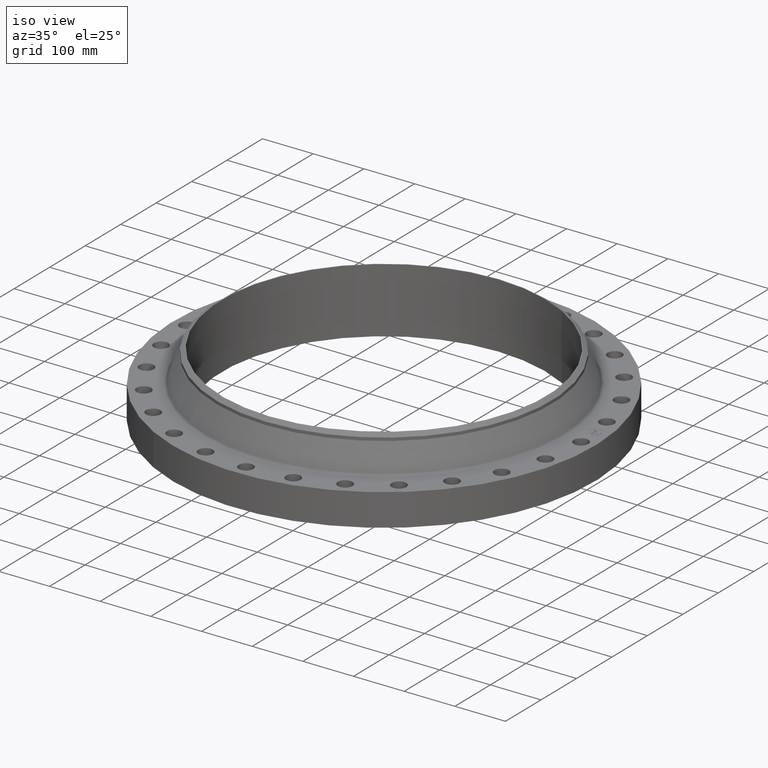
[diagram: clean part render]
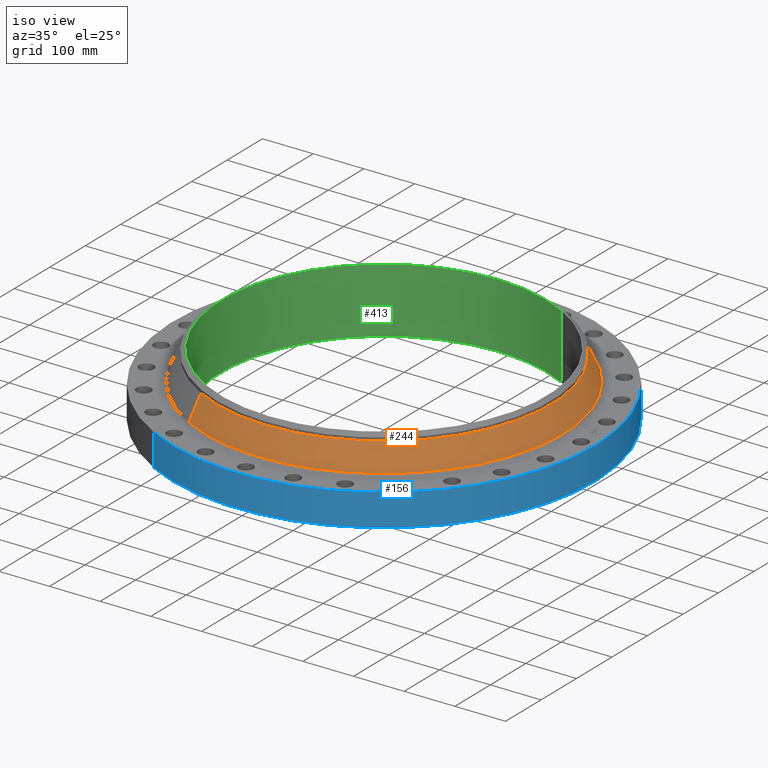
[diagram: same view with three faces highlighted in distinct colors, each labeled with its STEP entity id]
A machine part, iso view with three faces highlighted in distinct colors.
Their STEP definitions:

[orange] entity #244 — the highlighted conical surface has half-angle 24.912 deg.
#180=AXIS2_PLACEMENT_3D('Circle Axis2P3D',#178,#179,$) ;
#217=AXIS2_PLACEMENT_3D('Cone Axis2P3D',#214,#215,#216) ;
#228=AXIS2_PLACEMENT_3D('Circle Axis2P3D',#226,#227,$) ;
#175=CARTESIAN_POINT('Vertex',(6.65097424101,12.1745266856,2.64469540812)) ;
#178=CARTESIAN_POINT('Axis2P3D Location',(0.,0.,2.64469540812)) ;
#182=CARTESIAN_POINT('Vertex',(-6.65097424101,-12.1745266856,2.64469540812)) ;
#214=CARTESIAN_POINT('Axis2P3D Location',(0.,0.,4.52398984383)) ;
#219=CARTESIAN_POINT('Line Origine',(6.44175312144,11.7915499951,3.58434262598)) ;
#223=CARTESIAN_POINT('Vertex',(6.23253200188,11.4085733046,4.52398984383)) ;
#226=CARTESIAN_POINT('Axis2P3D Location',(0.,0.,4.52398984383)) ;
#230=CARTESIAN_POINT('Vertex',(-6.23253200188,-11.4085733046,4.52398984383)) ;
#233=CARTESIAN_POINT('Line Origine',(-6.44175312144,-11.7915499951,3.58434262598)) ;
#179=DIRECTION('Axis2P3D Direction',(0.,0.,-0.0393700787402)) ;
#215=DIRECTION('Axis2P3D Direction',(0.,0.,-0.0393700787402)) ;
#216=DIRECTION('Axis2P3D XDirection',(-0.0188750212049,-0.0345504945626,0.)) ;
#220=DIRECTION('Vector Direction',(0.00795050561934,0.0145533029176,-0.0357070572099)) ;
#227=DIRECTION('Axis2P3D Direction',(0.,0.,-0.0393700787402)) ;
#234=DIRECTION('Vector Direction',(-0.00795050561934,-0.0145533029176,-0.0357070572099)) ;
#221=VECTOR('Line Direction',#220,0.0393700787402) ;
#235=VECTOR('Line Direction',#234,0.0393700787402) ;
#239=ORIENTED_EDGE('',*,*,#184,.F.) ;
#240=ORIENTED_EDGE('',*,*,#225,.T.) ;
#241=ORIENTED_EDGE('',*,*,#232,.T.) ;
#242=ORIENTED_EDGE('',*,*,#237,.F.) ;
#244=ADVANCED_FACE('PartBody',(#243),#218,.T.) ;
#181=CIRCLE('generated circle',#180,13.8727992263) ;
#229=CIRCLE('generated circle',#228,13.0000000001) ;
#218=CONICAL_SURFACE('Cone',#217,13.0000000001,0.434788255907) ;
#184=EDGE_CURVE('',#176,#183,#181,.T.) ;
#225=EDGE_CURVE('',#176,#224,#222,.F.) ;
#232=EDGE_CURVE('',#224,#231,#229,.T.) ;
#237=EDGE_CURVE('',#183,#231,#236,.F.) ;
#238=EDGE_LOOP('',(#239,#240,#241,#242)) ;
#243=FACE_OUTER_BOUND('',#238,.T.) ;
#222=LINE('Line',#219,#221) ;
#236=LINE('Line',#233,#235) ;
#176=VERTEX_POINT('',#175) ;
#183=VERTEX_POINT('',#182) ;
#224=VERTEX_POINT('',#223) ;
#231=VERTEX_POINT('',#230) ;

[blue] entity #156 — the highlighted cylindrical surface (partial cylindrical patch) has radius 415.925 mm, axis along (0, 0, -1).
#103=AXIS2_PLACEMENT_3D('Cylinder Axis2P3D',#100,#101,#102) ;
#142=AXIS2_PLACEMENT_3D('Circle Axis2P3D',#140,#141,$) ;
#147=AXIS2_PLACEMENT_3D('Circle Axis2P3D',#145,#146,$) ;
#100=CARTESIAN_POINT('Axis2P3D Location',(0.,0.,2.51875000001)) ;
#109=CARTESIAN_POINT('Vertex',(-7.85059319468,-14.370414451,1.95818864186E-015)) ;
#111=CARTESIAN_POINT('Vertex',(7.85059319468,14.370414451,1.95818864186E-015)) ;
#114=CARTESIAN_POINT('Line Origine',(-7.85059319468,-14.370414451,1.25000000001)) ;
#118=CARTESIAN_POINT('Vertex',(-7.85059319468,-14.370414451,2.50000000001)) ;
#125=CARTESIAN_POINT('Vertex',(7.85059319468,14.370414451,2.50000000001)) ;
#128=CARTESIAN_POINT('Line Origine',(7.85059319468,14.370414451,1.25000000001)) ;
#140=CARTESIAN_POINT('Axis2P3D Location',(0.,0.,1.95818864186E-015)) ;
#145=CARTESIAN_POINT('Axis2P3D Location',(0.,0.,2.50000000001)) ;
#101=DIRECTION('Axis2P3D Direction',(0.,0.,-0.0393700787402)) ;
#102=DIRECTION('Axis2P3D XDirection',(0.0188750212049,0.0345504945626,0.)) ;
#115=DIRECTION('Vector Direction',(0.,0.,-0.0393700787402)) ;
#129=DIRECTION('Vector Direction',(0.,0.,-0.0393700787402)) ;
#141=DIRECTION('Axis2P3D Direction',(0.,0.,-0.0393700787402)) ;
#146=DIRECTION('Axis2P3D Direction',(0.,0.,-0.0393700787402)) ;
#116=VECTOR('Line Direction',#115,0.0393700787402) ;
#130=VECTOR('Line Direction',#129,0.0393700787402) ;
#151=ORIENTED_EDGE('',*,*,#144,.F.) ;
#152=ORIENTED_EDGE('',*,*,#132,.T.) ;
#153=ORIENTED_EDGE('',*,*,#149,.T.) ;
#154=ORIENTED_EDGE('',*,*,#120,.F.) ;
#156=ADVANCED_FACE('PartBody',(#155),#104,.T.) ;
#143=CIRCLE('generated circle',#142,16.3750000001) ;
#148=CIRCLE('generated circle',#147,16.3750000001) ;
#104=CYLINDRICAL_SURFACE('generated cylinder',#103,16.3750000001) ;
#120=EDGE_CURVE('',#110,#119,#117,.F.) ;
#132=EDGE_CURVE('',#112,#126,#131,.F.) ;
#144=EDGE_CURVE('',#112,#110,#143,.T.) ;
#149=EDGE_CURVE('',#126,#119,#148,.T.) ;
#150=EDGE_LOOP('',(#151,#152,#153,#154)) ;
#155=FACE_OUTER_BOUND('',#150,.T.) ;
#117=LINE('Line',#114,#116) ;
#131=LINE('Line',#128,#130) ;
#110=VERTEX_POINT('',#109) ;
#112=VERTEX_POINT('',#111) ;
#119=VERTEX_POINT('',#118) ;
#126=VERTEX_POINT('',#125) ;

[green] entity #413 — the highlighted cylindrical surface (partial cylindrical patch) has radius 320.675 mm, axis along (0, 0, -1).
#354=AXIS2_PLACEMENT_3D('Circle Axis2P3D',#352,#353,$) ;
#374=AXIS2_PLACEMENT_3D('Cylinder Axis2P3D',#371,#372,#373) ;
#404=AXIS2_PLACEMENT_3D('Circle Axis2P3D',#402,#403,$) ;
#352=CARTESIAN_POINT('Axis2P3D Location',(-1.1189649382E-015,8.39223703654E-016,5.00000000002)) ;
#356=CARTESIAN_POINT('Vertex',(-6.0527474249,-11.0794798439,5.00000000002)) ;
#358=CARTESIAN_POINT('Vertex',(6.0527474249,11.0794798439,5.00000000002)) ;
#371=CARTESIAN_POINT('Axis2P3D Location',(0.,0.,2.51875000001)) ;
#376=CARTESIAN_POINT('Line Origine',(6.0527474249,11.0794798439,2.46875000001)) ;
#380=CARTESIAN_POINT('Vertex',(6.0527474249,11.0794798439,-0.0625000000003)) ;
#387=CARTESIAN_POINT('Vertex',(-6.0527474249,-11.0794798439,-0.0625000000003)) ;
#390=CARTESIAN_POINT('Line Origine',(-6.0527474249,-11.0794798439,2.46875000001)) ;
#402=CARTESIAN_POINT('Axis2P3D Location',(0.,0.,-0.0625000000003)) ;
#353=DIRECTION('Axis2P3D Direction',(0.,-0.,-0.0393700787402)) ;
#372=DIRECTION('Axis2P3D Direction',(0.,0.,-0.0393700787402)) ;
#373=DIRECTION('Axis2P3D XDirection',(-0.0188750212049,-0.0345504945626,0.)) ;
#377=DIRECTION('Vector Direction',(0.,0.,-0.0393700787402)) ;
#391=DIRECTION('Vector Direction',(0.,0.,-0.0393700787402)) ;
#403=DIRECTION('Axis2P3D Direction',(0.,0.,-0.0393700787402)) ;
#378=VECTOR('Line Direction',#377,0.0393700787402) ;
#392=VECTOR('Line Direction',#391,0.0393700787402) ;
#408=ORIENTED_EDGE('',*,*,#394,.T.) ;
#409=ORIENTED_EDGE('',*,*,#406,.T.) ;
#410=ORIENTED_EDGE('',*,*,#382,.F.) ;
#411=ORIENTED_EDGE('',*,*,#360,.F.) ;
#413=ADVANCED_FACE('PartBody',(#412),#375,.F.) ;
#355=CIRCLE('generated circle',#354,12.6250000001) ;
#405=CIRCLE('generated circle',#404,12.6250000001) ;
#375=CYLINDRICAL_SURFACE('generated cylinder',#374,12.6250000001) ;
#360=EDGE_CURVE('',#357,#359,#355,.T.) ;
#382=EDGE_CURVE('',#359,#381,#379,.T.) ;
#394=EDGE_CURVE('',#357,#388,#393,.T.) ;
#406=EDGE_CURVE('',#388,#381,#405,.T.) ;
#407=EDGE_LOOP('',(#408,#409,#410,#411)) ;
#412=FACE_OUTER_BOUND('',#407,.T.) ;
#379=LINE('Line',#376,#378) ;
#393=LINE('Line',#390,#392) ;
#357=VERTEX_POINT('',#356) ;
#359=VERTEX_POINT('',#358) ;
#381=VERTEX_POINT('',#380) ;
#388=VERTEX_POINT('',#387) ;